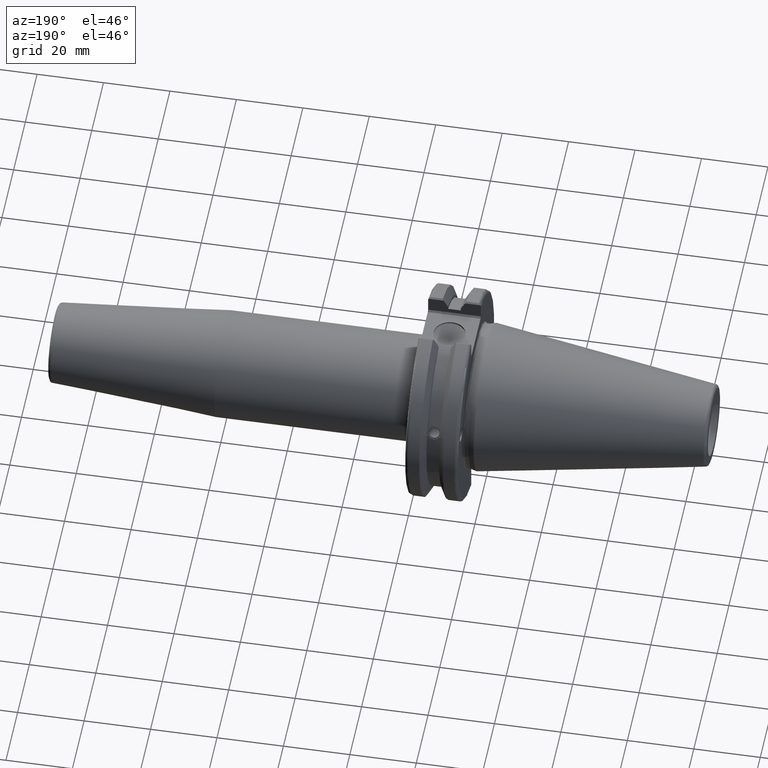
[diagram: clean part render]
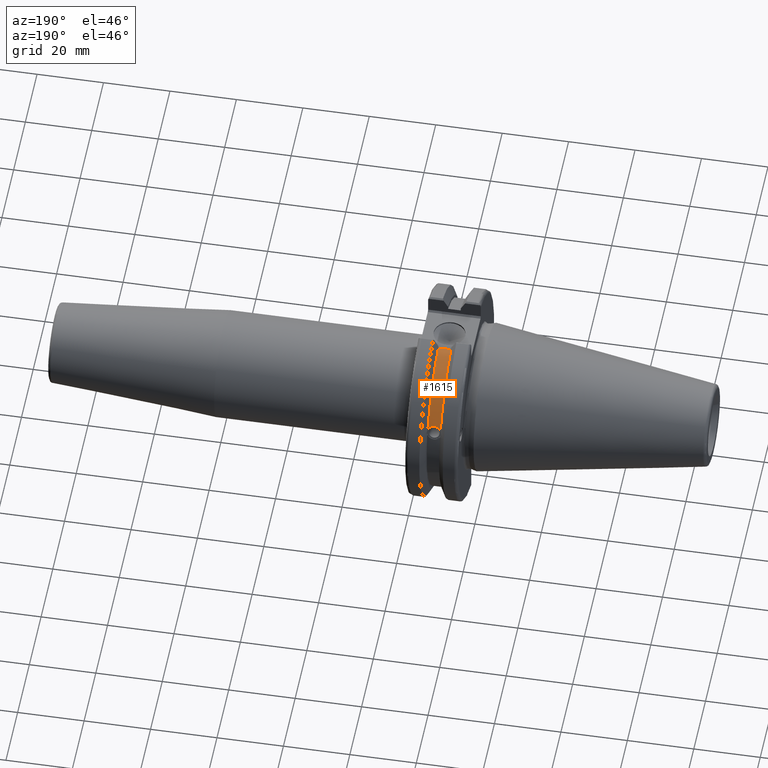
[diagram: same view with one face highlighted and labeled with its STEP entity id]
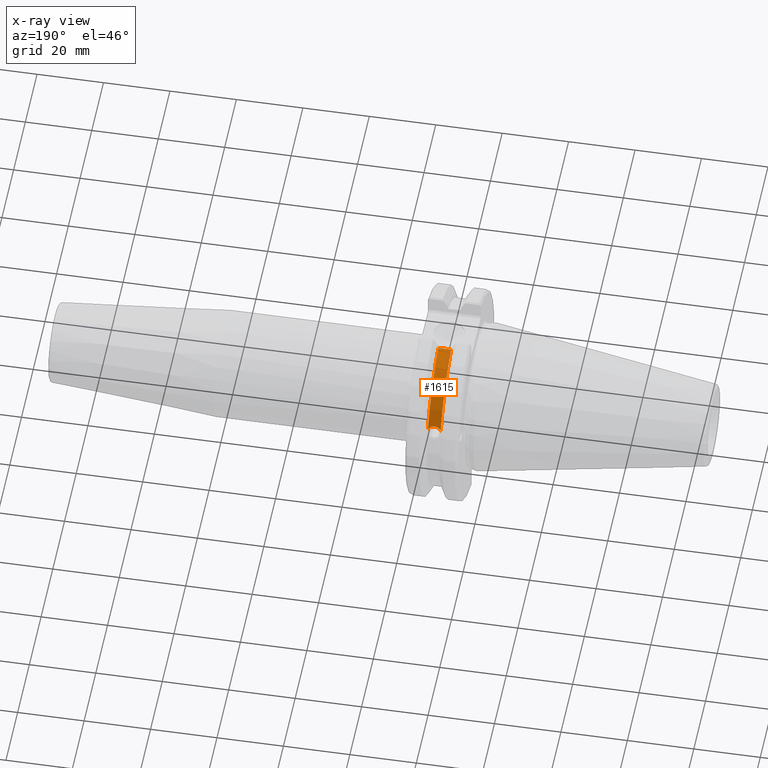
[diagram: x-ray of the same camera — body ghosted, the highlighted face saturated]
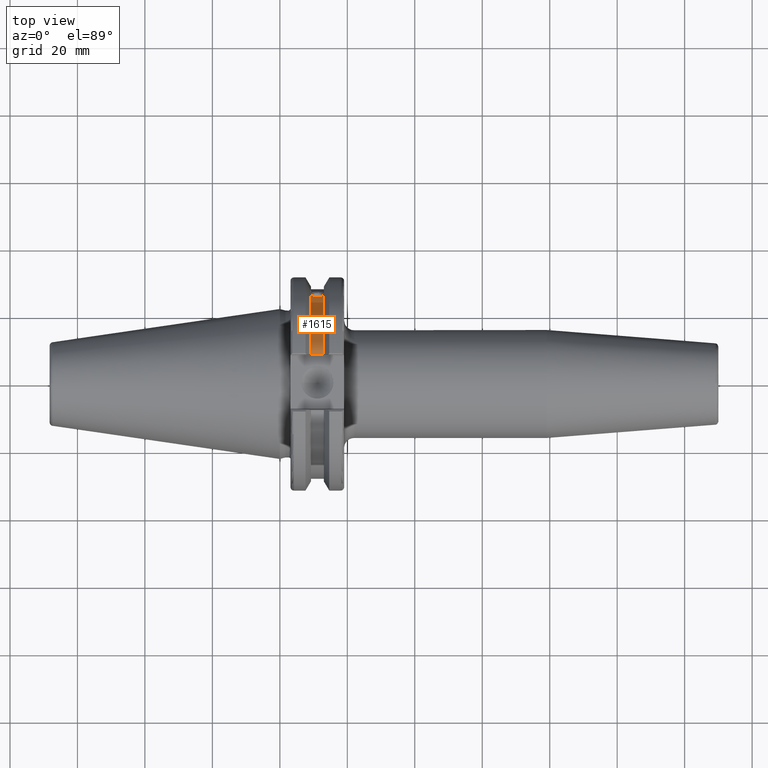
[diagram: same view with one face highlighted and labeled with its STEP entity id]
A machine part, auxiliary view. The second image highlights one B-rep face of the part: STEP entity #1615.
The next image is the same camera in x-ray: the body ghosted, the highlighted face saturated — about 0% of this face is hidden behind the body in this view.
A second angle (top view) of the same face is appended — the face is thin or edge-on in the first view.
In plain terms, the highlighted cylindrical surface (partial cylindrical patch) has radius 28.15 mm, axis along (1, 0, 0).
Its self-contained STEP definition (entity closure, byte-faithful):
#43=B_SPLINE_CURVE_WITH_KNOTS('',3,(#2705,#2706,#2707,#2708,#2709,#2710,
#2711,#2712,#2713,#2714,#2715,#2716,#2717,#2718,#2719),.UNSPECIFIED.,.F.,
 .F.,(4,2,2,3,2,2,4),(-0.231446873660082,-0.158271583089134,-0.0791357915445672,
0.,0.0791357915445672,0.158271583089134,0.231446873660465),
 .UNSPECIFIED.);
#172=CYLINDRICAL_SURFACE('',#1817,28.15);
#254=FACE_OUTER_BOUND('',#361,.T.);
#361=EDGE_LOOP('',(#1465,#1466,#1467,#1468));
#461=LINE('',#3047,#559);
#559=VECTOR('',#2230,10.);
#638=CIRCLE('',#1816,28.15);
#639=CIRCLE('',#1818,28.15);
#730=VERTEX_POINT('',#2702);
#731=VERTEX_POINT('',#2704);
#796=VERTEX_POINT('',#3044);
#797=VERTEX_POINT('',#3046);
#917=EDGE_CURVE('',#731,#730,#43,.T.);
#1019=EDGE_CURVE('',#797,#796,#461,.T.);
#1032=EDGE_CURVE('',#730,#797,#638,.T.);
#1033=EDGE_CURVE('',#731,#796,#639,.T.);
#1465=ORIENTED_EDGE('',*,*,#917,.T.);
#1466=ORIENTED_EDGE('',*,*,#1032,.T.);
#1467=ORIENTED_EDGE('',*,*,#1019,.T.);
#1468=ORIENTED_EDGE('',*,*,#1033,.F.);
#1615=ADVANCED_FACE('',(#254),#172,.T.);
#1816=AXIS2_PLACEMENT_3D('',#3076,#2265,#2266);
#1817=AXIS2_PLACEMENT_3D('',#3077,#2267,#2268);
#1818=AXIS2_PLACEMENT_3D('',#3078,#2269,#2270);
#2230=DIRECTION('',(1.,0.,0.));
#2265=DIRECTION('center_axis',(1.,0.,0.));
#2266=DIRECTION('ref_axis',(0.,0.,-1.));
#2267=DIRECTION('center_axis',(1.,0.,0.));
#2268=DIRECTION('ref_axis',(0.,1.,0.));
#2269=DIRECTION('center_axis',(1.,0.,0.));
#2270=DIRECTION('ref_axis',(0.,0.,-1.));
#2702=CARTESIAN_POINT('',(9.2191,26.1451788594704,10.4332220529567));
#2704=CARTESIAN_POINT('',(13.0491,26.1451788594704,10.4332220529568));
#2705=CARTESIAN_POINT('Ctrl Pts',(13.0491,26.1451788594704,10.4332220529568));
#2706=CARTESIAN_POINT('Ctrl Pts',(12.9428694290343,26.0576536126147,10.6525563316816));
#2707=CARTESIAN_POINT('Ctrl Pts',(12.791379862294,25.9751489313128,10.8509873904882));
#2708=CARTESIAN_POINT('Ctrl Pts',(12.4326293734259,25.8346412777187,11.1816210830117));
#2709=CARTESIAN_POINT('Ctrl Pts',(12.1965549887012,25.7695111693635,11.3298867884858));
#2710=CARTESIAN_POINT('Ctrl Pts',(11.6791874573612,25.6822868299377,11.5262389251846));
#2711=CARTESIAN_POINT('Ctrl Pts',(11.3978859718152,25.6603958057616,11.5743935949859));
#2712=CARTESIAN_POINT('Ctrl Pts',(11.1341,25.6603958057616,11.5743935949859));
#2713=CARTESIAN_POINT('Ctrl Pts',(10.8703140281848,25.6603958057616,11.5743935949859));
#2714=CARTESIAN_POINT('Ctrl Pts',(10.5890125426388,25.6822868299377,11.5262389251846));
#2715=CARTESIAN_POINT('Ctrl Pts',(10.0716450112988,25.7695111693635,11.3298867884858));
#2716=CARTESIAN_POINT('Ctrl Pts',(9.83557062657411,25.8346412777187,11.1816210830117));
#2717=CARTESIAN_POINT('Ctrl Pts',(9.4768201377051,25.9751489313131,10.8509873904873));
#2718=CARTESIAN_POINT('Ctrl Pts',(9.32533057097183,26.0576536126096,10.6525563316942));
#2719=CARTESIAN_POINT('Ctrl Pts',(9.2191,26.1451788594704,10.4332220529567));
#3044=CARTESIAN_POINT('',(13.0491,8.19,26.932255754021));
#3046=CARTESIAN_POINT('',(9.2191,8.19,26.932255754021));
#3047=CARTESIAN_POINT('',(11.1341,8.19,26.932255754021));
#3076=CARTESIAN_POINT('Origin',(9.2191,0.,0.));
#3077=CARTESIAN_POINT('Origin',(11.1341,0.,0.));
#3078=CARTESIAN_POINT('Origin',(13.0491,0.,0.));